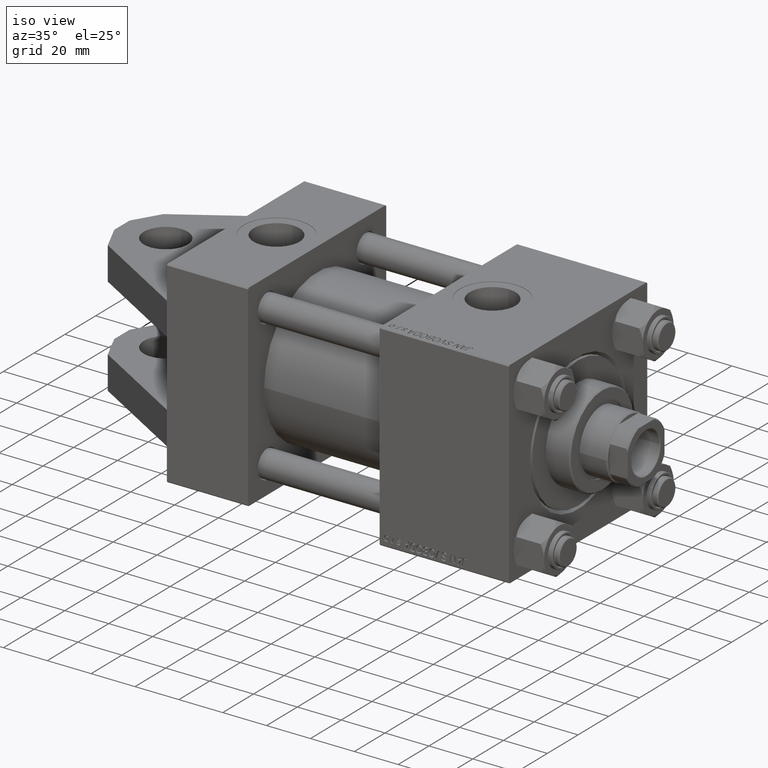
[diagram: clean part render]
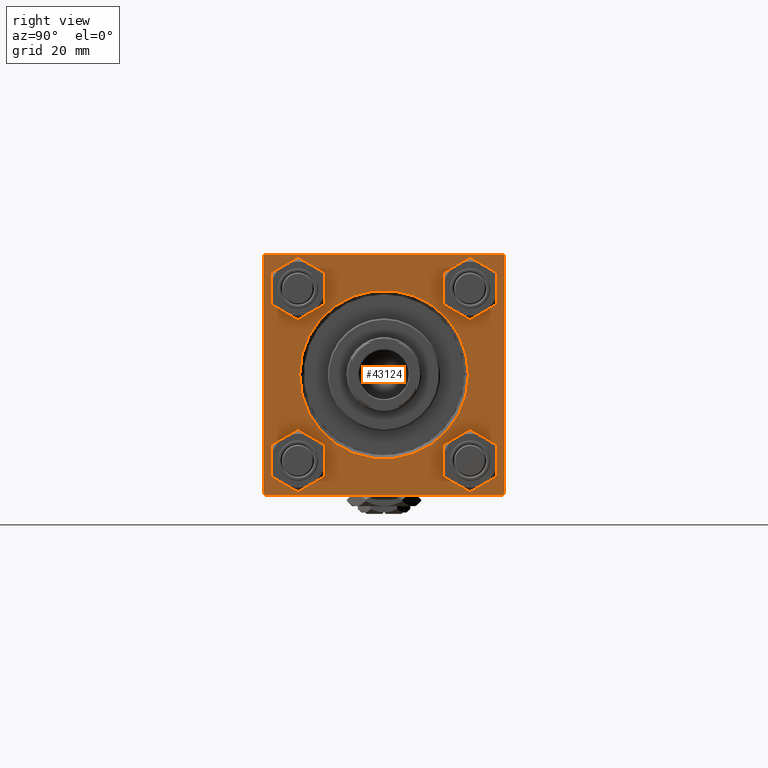
[diagram: tour spotlight — one face highlighted and labeled with its STEP entity id]
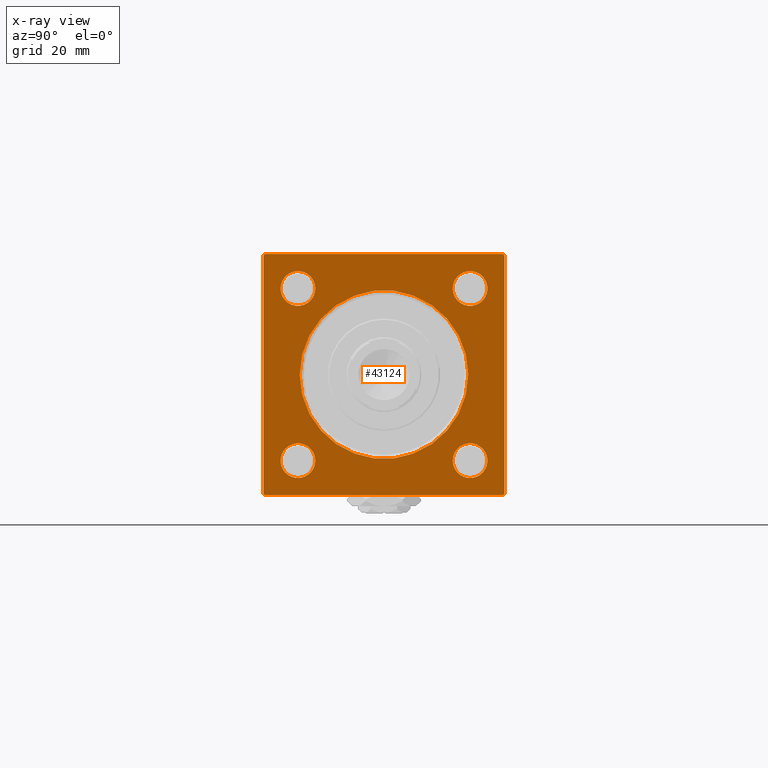
[diagram: x-ray of the same camera — body ghosted, this tour face saturated]
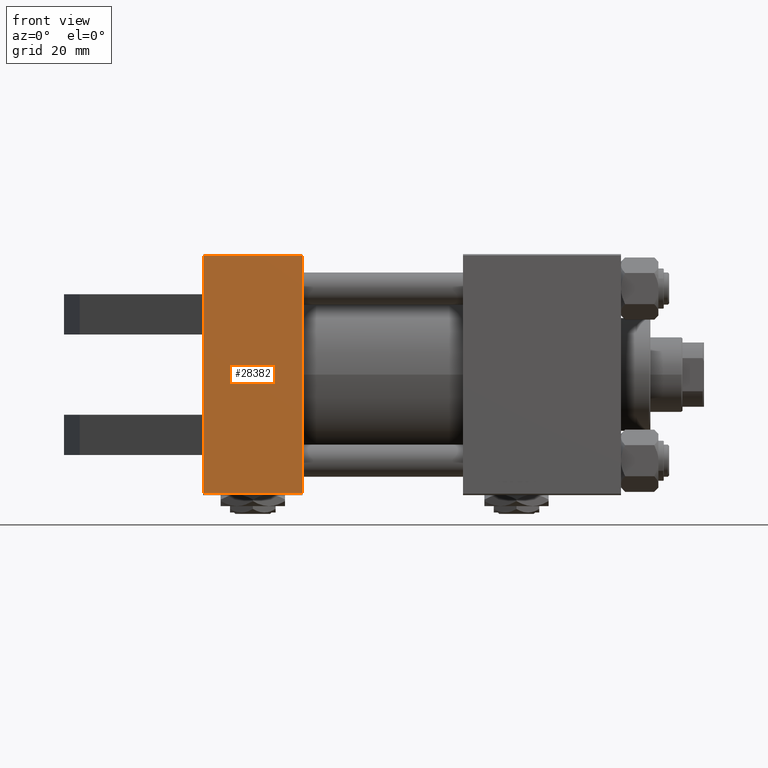
[diagram: tour spotlight — one face highlighted and labeled with its STEP entity id]
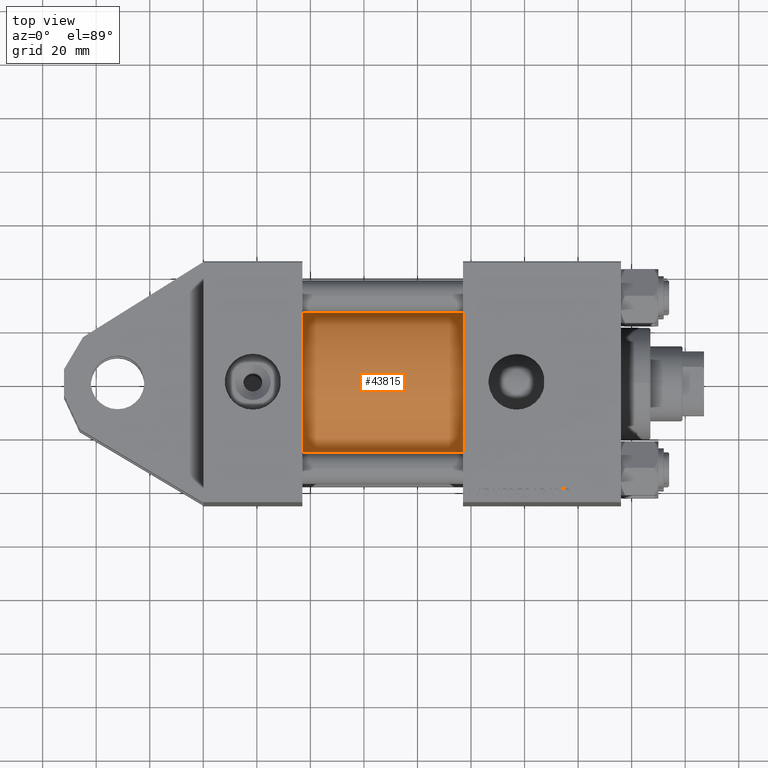
[diagram: tour spotlight — one face highlighted and labeled with its STEP entity id]
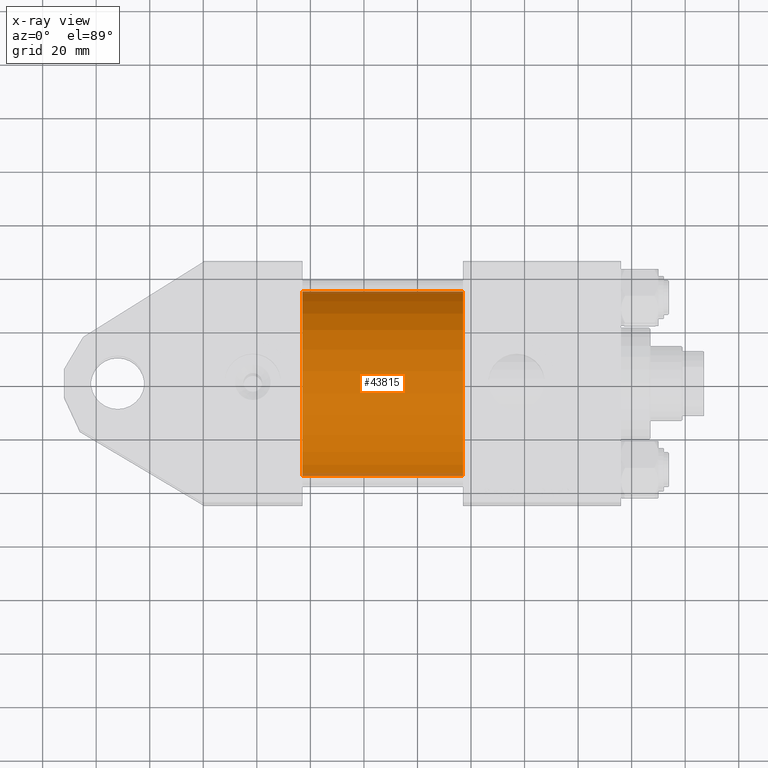
[diagram: x-ray of the same camera — body ghosted, this tour face saturated]
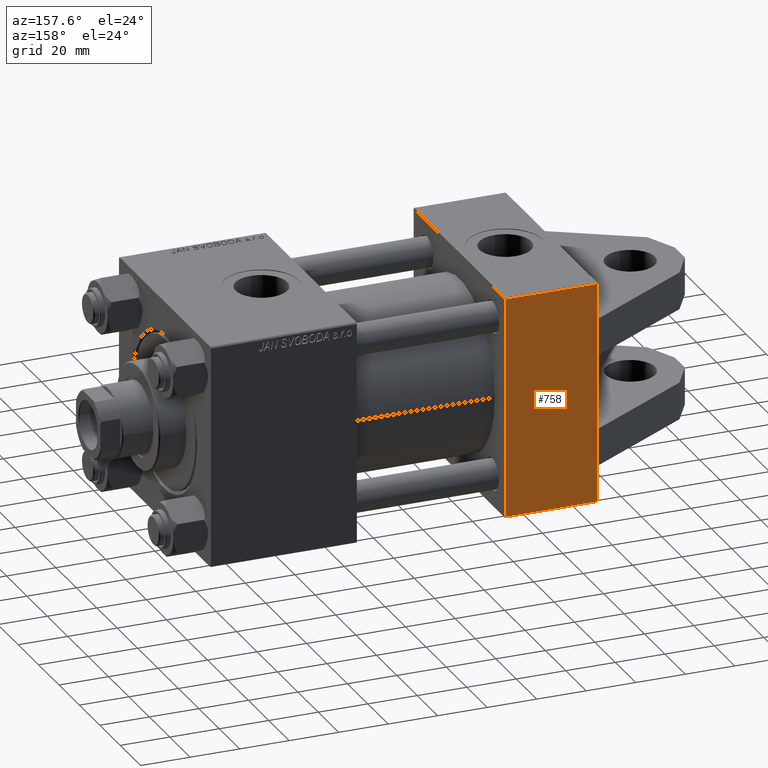
[diagram: tour spotlight — one face highlighted and labeled with its STEP entity id]
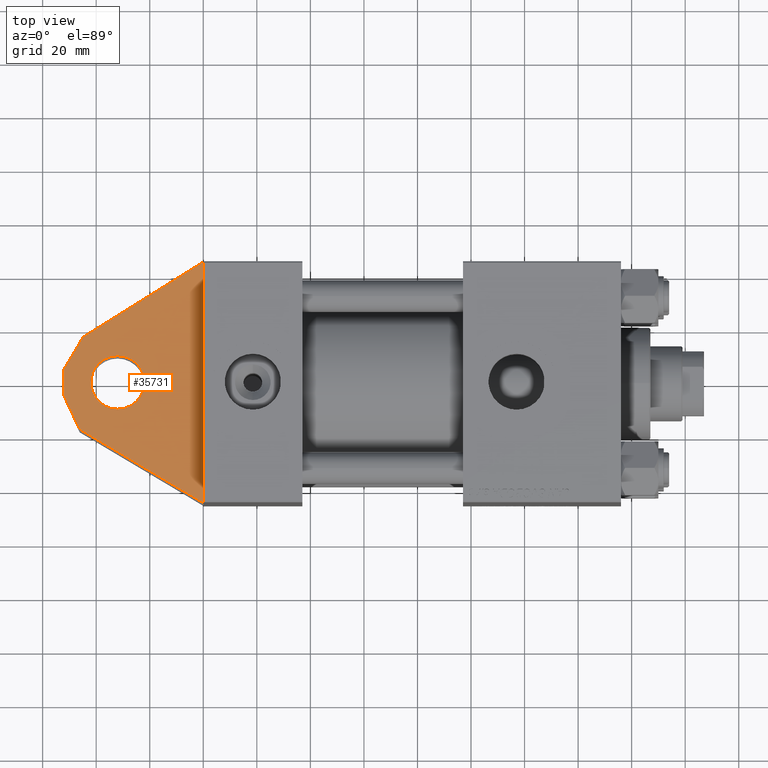
[diagram: tour spotlight — one face highlighted and labeled with its STEP entity id]
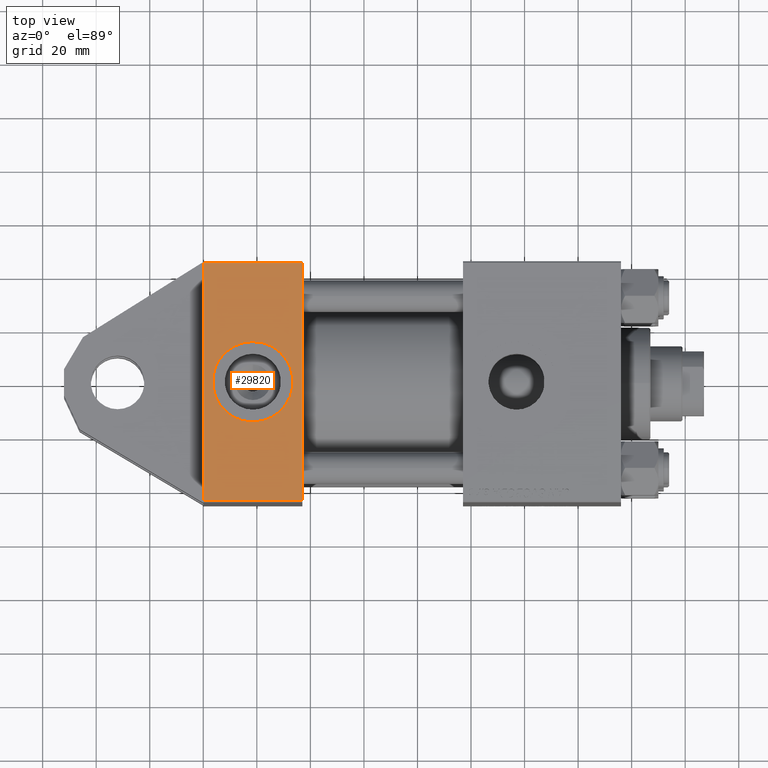
[diagram: tour spotlight — one face highlighted and labeled with its STEP entity id]
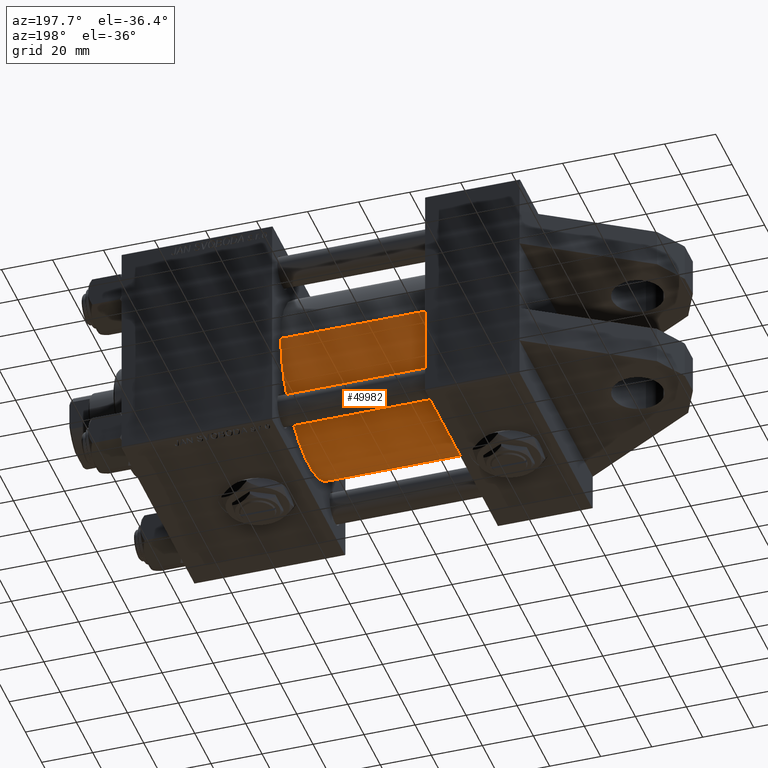
[diagram: tour spotlight — one face highlighted and labeled with its STEP entity id]
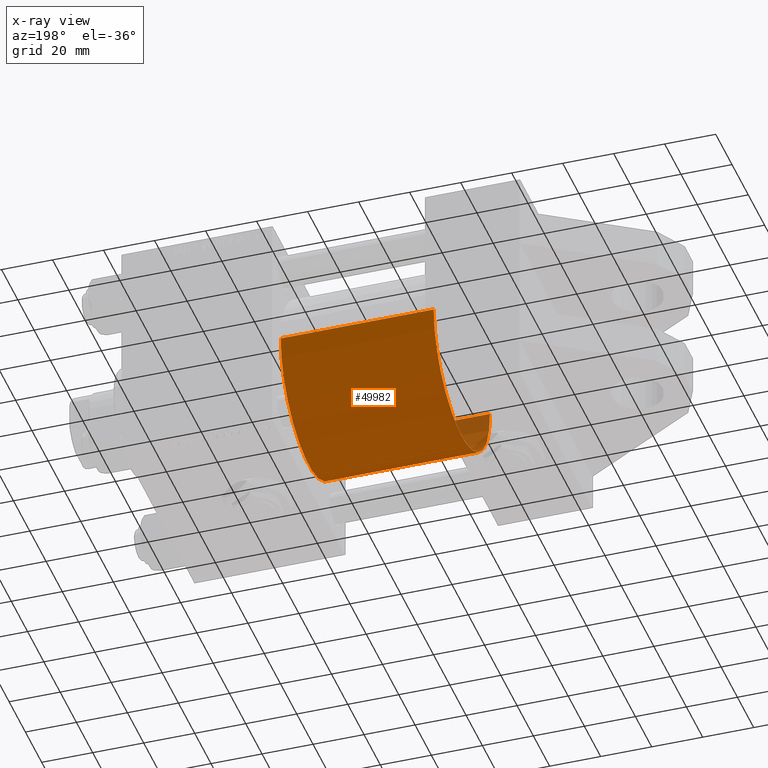
[diagram: x-ray of the same camera — body ghosted, this tour face saturated]
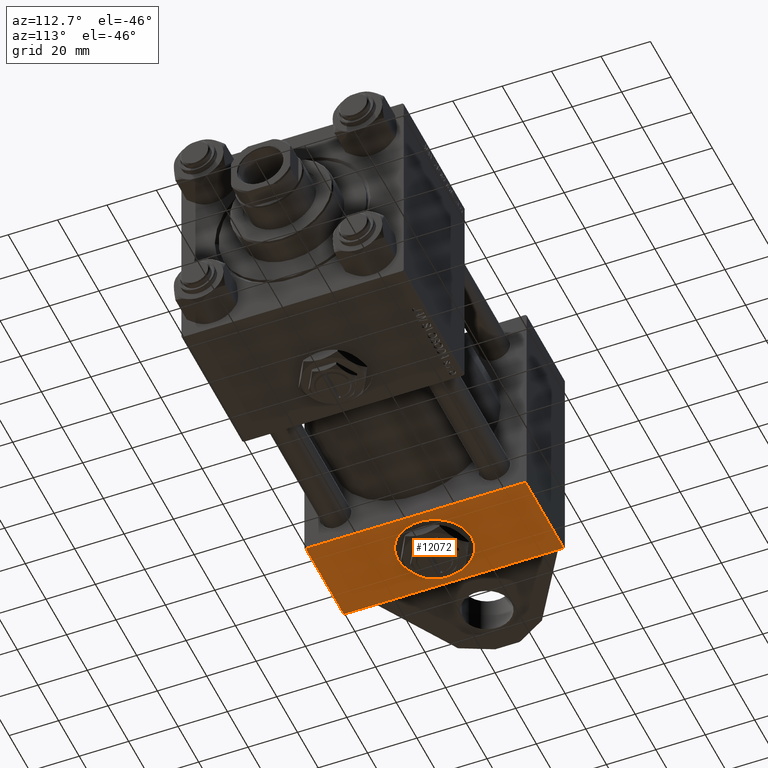
[diagram: tour spotlight — one face highlighted and labeled with its STEP entity id]
A machine part: a face-by-face anatomy tour. The part has 1230 B-rep faces; the first image is the clean iso view, then the 8 largest visible faces are spotlighted one at a time (largest first), each with its STEP entity span.

Face 1 — right view, entity #43124. An x-ray twin of the same camera follows (body ghosted, this face saturated) — the face is partly hidden behind the body. In plain terms, the highlighted planar face has unit normal (-1, 0, -0).
Definition (entity closure, byte-faithful):
#241 = CARTESIAN_POINT ( 'NONE',  ( 156.0000000000000000, 0.000000000000000000, -31.50000000000000000 ) ) ;
#940 = DIRECTION ( 'NONE',  ( 0.000000000000000000, -1.000000000000000000, 0.000000000000000000 ) ) ;
#966 = FACE_BOUND ( 'NONE', #4266, .T. ) ;
#1619 = VECTOR ( 'NONE', #43794, 1000.000000000000000 ) ;
#1981 = DIRECTION ( 'NONE',  ( -1.000000000000000000, -0.000000000000000000, -0.000000000000000000 ) ) ;
#1989 = CARTESIAN_POINT ( 'NONE',  ( 156.0000000000000000, 0.000000000000000000, 0.000000000000000000 ) ) ;
#2036 = CIRCLE ( 'NONE', #31304, 6.500000000000005329 ) ;
#2094 = CARTESIAN_POINT ( 'NONE',  ( 156.0000000000000000, 32.14999999999999147, 32.15000000000000568 ) ) ;
#2232 = CIRCLE ( 'NONE', #4725, 6.499999999999999112 ) ;
#3614 = CARTESIAN_POINT ( 'NONE',  ( 156.0000000000000000, 45.00000000000001421, -44.49999999999997158 ) ) ;
#3743 = CARTESIAN_POINT ( 'NONE',  ( 156.0000000000000000, 45.00000000000001421, 45.00000000000000000 ) ) ;
#4124 = DIRECTION ( 'NONE',  ( -0.000000000000000000, 0.000000000000000000, 1.000000000000000000 ) ) ;
#4212 = EDGE_CURVE ( 'NONE', #44272, #12742, #29058, .T. ) ;
#4266 = EDGE_LOOP ( 'NONE', ( #25003, #37001 ) ) ;
#4646 = DIRECTION ( 'NONE',  ( -1.000000000000000000, -0.000000000000000000, -0.000000000000000000 ) ) ;
#4725 = AXIS2_PLACEMENT_3D ( 'NONE', #8045, #47348, #27705 ) ;
#4899 = AXIS2_PLACEMENT_3D ( 'NONE', #18155, #34900, #50360 ) ;
#5820 = EDGE_CURVE ( 'NONE', #39425, #29067, #6565, .T. ) ;
#5857 = CARTESIAN_POINT ( 'NONE',  ( 156.0000000000000000, -32.14999999999999147, 32.14999999999999147 ) ) ;
#6366 = EDGE_LOOP ( 'NONE', ( #11472, #42408 ) ) ;
#6369 = CARTESIAN_POINT ( 'NONE',  ( 156.0000000000000000, 32.14999999999999147, 32.15000000000000568 ) ) ;
#6474 = VERTEX_POINT ( 'NONE', #241 ) ;
#6473 = EDGE_CURVE ( 'NONE', #44740, #25174, #27494, .T. ) ;
#6565 = CIRCLE ( 'NONE', #11598, 6.500000000000005329 ) ;
#7490 = AXIS2_PLACEMENT_3D ( 'NONE', #37891, #1981, #30785 ) ;
#7762 = EDGE_CURVE ( 'NONE', #49736, #15545, #33413, .T. ) ;
#7863 = VECTOR ( 'NONE', #16715, 1000.000000000000000 ) ;
#8005 = CARTESIAN_POINT ( 'NONE',  ( 156.0000000000000000, 44.50000000000001421, -45.00000000000000000 ) ) ;
#8045 = CARTESIAN_POINT ( 'NONE',  ( 156.0000000000000000, 32.14999999999999147, -32.15000000000000568 ) ) ;
#8331 = LINE ( 'NONE', #40543, #7863 ) ;
#8612 = DIRECTION ( 'NONE',  ( 0.000000000000000000, 0.000000000000000000, 1.000000000000000000 ) ) ;
#9319 = CARTESIAN_POINT ( 'NONE',  ( 156.0000000000000000, 45.00000000000001421, -45.00000000000000000 ) ) ;
#9690 = EDGE_CURVE ( 'NONE', #12742, #44272, #2036, .T. ) ;
#10498 = CARTESIAN_POINT ( 'NONE',  ( 156.0000000000000000, 45.00000000000001421, 45.00000000000000000 ) ) ;
#10531 = EDGE_CURVE ( 'NONE', #36913, #15545, #26267, .T. ) ;
#10708 = AXIS2_PLACEMENT_3D ( 'NONE', #34361, #41976, #14194 ) ;
#10846 = ORIENTED_EDGE ( 'NONE', *, *, #14341, .F. ) ;
#11218 = CARTESIAN_POINT ( 'NONE',  ( 156.0000000000000000, -44.49999999999990052, -45.00000000000000000 ) ) ;
#11472 = ORIENTED_EDGE ( 'NONE', *, *, #13662, .T. ) ;
#11479 = ORIENTED_EDGE ( 'NONE', *, *, #10531, .T. ) ;
#11579 = CARTESIAN_POINT ( 'NONE',  ( 156.0000000000000000, -44.99999999999999289, -44.49999999999991473 ) ) ;
#11587 = EDGE_CURVE ( 'NONE', #20545, #36913, #8331, .T. ) ;
#11598 = AXIS2_PLACEMENT_3D ( 'NONE', #5857, #21831, #38338 ) ;
#11721 = FACE_BOUND ( 'NONE', #22623, .T. ) ;
#11829 = LINE ( 'NONE', #27816, #1619 ) ;
#11859 = LINE ( 'NONE', #3743, #45585 ) ;
#11880 = VECTOR ( 'NONE', #43903, 1000.000000000000114 ) ;
#12272 = CARTESIAN_POINT ( 'NONE',  ( 156.0000000000000000, -32.15000000000001279, -32.15000000000000568 ) ) ;
#12742 = VERTEX_POINT ( 'NONE', #13028 ) ;
#12745 = PLANE ( 'NONE',  #27478 ) ;
#12796 = DIRECTION ( 'NONE',  ( -1.000000000000000000, -0.000000000000000000, -0.000000000000000000 ) ) ;
#13028 = CARTESIAN_POINT ( 'NONE',  ( 156.0000000000000000, 32.14999999999999147, 38.65000000000001990 ) ) ;
#13466 = EDGE_LOOP ( 'NONE', ( #20373, #11479, #36946, #39602, #10846, #33901, #37519, #47758 ) ) ;
#13662 = EDGE_CURVE ( 'NONE', #6474, #31577, #28006, .T. ) ;
#14194 = DIRECTION ( 'NONE',  ( 0.000000000000000000, 0.000000000000000000, 1.000000000000000000 ) ) ;
#14341 = EDGE_CURVE ( 'NONE', #38869, #42934, #41966, .T. ) ;
#14921 = EDGE_CURVE ( 'NONE', #30464, #51412, #11859, .T. ) ;
#14955 = CIRCLE ( 'NONE', #4899, 31.50000000000000000 ) ;
#15242 = CARTESIAN_POINT ( 'NONE',  ( 156.0000000000000000, 45.00000000000001421, 44.50000000000000000 ) ) ;
#15545 = VERTEX_POINT ( 'NONE', #11218 ) ;
#15790 = AXIS2_PLACEMENT_3D ( 'NONE', #12272, #12796, #8612 ) ;
#15963 = CIRCLE ( 'NONE', #33544, 6.500000000000005329 ) ;
#16213 = CARTESIAN_POINT ( 'NONE',  ( 156.0000000000000000, -32.14999999999999147, 38.65000000000000568 ) ) ;
#16715 = DIRECTION ( 'NONE',  ( 0.000000000000000000, 7.709882115452478166E-17, -1.000000000000000000 ) ) ;
#17494 = VECTOR ( 'NONE', #36872, 1000.000000000000114 ) ;
#18086 = DIRECTION ( 'NONE',  ( -1.000000000000000000, -0.000000000000000000, -0.000000000000000000 ) ) ;
#18155 = CARTESIAN_POINT ( 'NONE',  ( 156.0000000000000000, 0.000000000000000000, 0.000000000000000000 ) ) ;
#18761 = CARTESIAN_POINT ( 'NONE',  ( 156.0000000000000000, 32.14999999999999147, 25.64999999999999858 ) ) ;
#19088 = CIRCLE ( 'NONE', #10708, 6.500000000000005329 ) ;
#19177 = ORIENTED_EDGE ( 'NONE', *, *, #28403, .T. ) ;
#19647 = AXIS2_PLACEMENT_3D ( 'NONE', #1989, #33945, #37104 ) ;
#19925 = CARTESIAN_POINT ( 'NONE',  ( 156.0000000000000000, 44.49999999999998579, 45.00000000000000000 ) ) ;
#20373 = ORIENTED_EDGE ( 'NONE', *, *, #11587, .T. ) ;
#20421 = VECTOR ( 'NONE', #940, 1000.000000000000000 ) ;
#20545 = VERTEX_POINT ( 'NONE', #28019 ) ;
#20896 = CARTESIAN_POINT ( 'NONE',  ( 156.0000000000000000, -32.15000000000001279, -32.15000000000000568 ) ) ;
#21588 = VERTEX_POINT ( 'NONE', #29393 ) ;
#21702 = EDGE_CURVE ( 'NONE', #29067, #39425, #19088, .T. ) ;
#21831 = DIRECTION ( 'NONE',  ( -1.000000000000000000, -0.000000000000000000, -0.000000000000000000 ) ) ;
#22623 = EDGE_LOOP ( 'NONE', ( #31823, #19177 ) ) ;
#24024 = FACE_BOUND ( 'NONE', #32845, .T. ) ;
#24555 = CARTESIAN_POINT ( 'NONE',  ( 156.0000000000000000, 3.857637417314162689E-15, 31.50000000000000000 ) ) ;
#25003 = ORIENTED_EDGE ( 'NONE', *, *, #5820, .T. ) ;
#25174 = VERTEX_POINT ( 'NONE', #27733 ) ;
#26267 = LINE ( 'NONE', #34129, #37106 ) ;
#26754 = EDGE_CURVE ( 'NONE', #31577, #6474, #14955, .T. ) ;
#26788 = DIRECTION ( 'NONE',  ( -1.000000000000000000, -0.000000000000000000, -0.000000000000000000 ) ) ;
#27478 = AXIS2_PLACEMENT_3D ( 'NONE', #27706, #40021, #4124 ) ;
#27494 = CIRCLE ( 'NONE', #15790, 6.500000000000005329 ) ;
#27705 = DIRECTION ( 'NONE',  ( 0.000000000000000000, 0.000000000000000000, 1.000000000000000000 ) ) ;
#27706 = CARTESIAN_POINT ( 'NONE',  ( 156.0000000000000000, 0.000000000000000000, 0.000000000000000000 ) ) ;
#27733 = CARTESIAN_POINT ( 'NONE',  ( 156.0000000000000000, -32.15000000000001279, -38.65000000000001279 ) ) ;
#27816 = CARTESIAN_POINT ( 'NONE',  ( 156.0000000000000000, 44.49999999999998579, 45.00000000000000000 ) ) ;
#27924 = EDGE_CURVE ( 'NONE', #38869, #30464, #11829, .T. ) ;
#28006 = CIRCLE ( 'NONE', #19647, 31.50000000000000000 ) ;
#28019 = CARTESIAN_POINT ( 'NONE',  ( 156.0000000000000000, -45.00000000000000000, 44.49999999999995737 ) ) ;
#28074 = EDGE_LOOP ( 'NONE', ( #37192, #35680 ) ) ;
#28233 = DIRECTION ( 'NONE',  ( 0.000000000000000000, 0.000000000000000000, 1.000000000000000000 ) ) ;
#28403 = EDGE_CURVE ( 'NONE', #40194, #21588, #48485, .T. ) ;
#28473 = FACE_BOUND ( 'NONE', #6366, .T. ) ;
#28795 = CARTESIAN_POINT ( 'NONE',  ( 156.0000000000000000, -32.15000000000001279, -25.64999999999999858 ) ) ;
#28869 = VECTOR ( 'NONE', #50319, 1000.000000000000000 ) ;
#29058 = CIRCLE ( 'NONE', #50826, 6.500000000000005329 ) ;
#29067 = VERTEX_POINT ( 'NONE', #16213 ) ;
#29393 = CARTESIAN_POINT ( 'NONE',  ( 156.0000000000000000, 32.14999999999999147, -38.65000000000000568 ) ) ;
#30464 = VERTEX_POINT ( 'NONE', #19925 ) ;
#30785 = DIRECTION ( 'NONE',  ( 0.000000000000000000, 0.000000000000000000, 1.000000000000000000 ) ) ;
#31304 = AXIS2_PLACEMENT_3D ( 'NONE', #2094, #18086, #34053 ) ;
#31577 = VERTEX_POINT ( 'NONE', #24555 ) ;
#31624 = EDGE_CURVE ( 'NONE', #25174, #44740, #15963, .T. ) ;
#31823 = ORIENTED_EDGE ( 'NONE', *, *, #38412, .T. ) ;
#31834 = CARTESIAN_POINT ( 'NONE',  ( 156.0000000000000000, -32.14999999999999147, 25.64999999999998437 ) ) ;
#32406 = CARTESIAN_POINT ( 'NONE',  ( 156.0000000000000000, -45.00000000000000000, 44.49999999999995737 ) ) ;
#32740 = ORIENTED_EDGE ( 'NONE', *, *, #4212, .T. ) ;
#32845 = EDGE_LOOP ( 'NONE', ( #32740, #42850 ) ) ;
#33413 = LINE ( 'NONE', #9319, #20421 ) ;
#33430 = EDGE_CURVE ( 'NONE', #49736, #42934, #34319, .T. ) ;
#33544 = AXIS2_PLACEMENT_3D ( 'NONE', #20896, #4646, #28233 ) ;
#33901 = ORIENTED_EDGE ( 'NONE', *, *, #27924, .T. ) ;
#33945 = DIRECTION ( 'NONE',  ( -1.000000000000000000, -0.000000000000000000, -0.000000000000000000 ) ) ;
#34053 = DIRECTION ( 'NONE',  ( 0.000000000000000000, 0.000000000000000000, 1.000000000000000000 ) ) ;
#34129 = CARTESIAN_POINT ( 'NONE',  ( 156.0000000000000000, -44.49999999999992895, -45.00000000000000000 ) ) ;
#34319 = LINE ( 'NONE', #35521, #11880 ) ;
#34361 = CARTESIAN_POINT ( 'NONE',  ( 156.0000000000000000, -32.14999999999999147, 32.14999999999999147 ) ) ;
#34900 = DIRECTION ( 'NONE',  ( -1.000000000000000000, -0.000000000000000000, -0.000000000000000000 ) ) ;
#35172 = DIRECTION ( 'NONE',  ( 0.000000000000000000, 0.000000000000000000, 1.000000000000000000 ) ) ;
#35521 = CARTESIAN_POINT ( 'NONE',  ( 156.0000000000000000, 45.00000000000001421, -44.50000000000000000 ) ) ;
#35680 = ORIENTED_EDGE ( 'NONE', *, *, #6473, .T. ) ;
#36579 = FACE_OUTER_BOUND ( 'NONE', #13466, .T. ) ;
#36872 = DIRECTION ( 'NONE',  ( -0.000000000000000000, -0.7071067811865474617, -0.7071067811865474617 ) ) ;
#36913 = VERTEX_POINT ( 'NONE', #11579 ) ;
#36946 = ORIENTED_EDGE ( 'NONE', *, *, #7762, .F. ) ;
#37001 = ORIENTED_EDGE ( 'NONE', *, *, #21702, .T. ) ;
#37104 = DIRECTION ( 'NONE',  ( 0.000000000000000000, 0.000000000000000000, 1.000000000000000000 ) ) ;
#37106 = VECTOR ( 'NONE', #50615, 1000.000000000000000 ) ;
#37192 = ORIENTED_EDGE ( 'NONE', *, *, #31624, .T. ) ;
#37519 = ORIENTED_EDGE ( 'NONE', *, *, #14921, .T. ) ;
#37891 = CARTESIAN_POINT ( 'NONE',  ( 156.0000000000000000, 32.14999999999999147, -32.15000000000000568 ) ) ;
#38338 = DIRECTION ( 'NONE',  ( 0.000000000000000000, 0.000000000000000000, 1.000000000000000000 ) ) ;
#38412 = EDGE_CURVE ( 'NONE', #21588, #40194, #2232, .T. ) ;
#38869 = VERTEX_POINT ( 'NONE', #15242 ) ;
#39425 = VERTEX_POINT ( 'NONE', #31834 ) ;
#39602 = ORIENTED_EDGE ( 'NONE', *, *, #33430, .T. ) ;
#40021 = DIRECTION ( 'NONE',  ( -1.000000000000000000, 0.000000000000000000, -0.000000000000000000 ) ) ;
#40194 = VERTEX_POINT ( 'NONE', #42368 ) ;
#40540 = LINE ( 'NONE', #32406, #17494 ) ;
#40543 = CARTESIAN_POINT ( 'NONE',  ( 156.0000000000000000, -45.00000000000000000, 44.99999999999998579 ) ) ;
#41966 = LINE ( 'NONE', #10498, #28869 ) ;
#41976 = DIRECTION ( 'NONE',  ( -1.000000000000000000, -0.000000000000000000, -0.000000000000000000 ) ) ;
#42368 = CARTESIAN_POINT ( 'NONE',  ( 156.0000000000000000, 32.14999999999999147, -25.65000000000000568 ) ) ;
#42408 = ORIENTED_EDGE ( 'NONE', *, *, #26754, .T. ) ;
#42850 = ORIENTED_EDGE ( 'NONE', *, *, #9690, .T. ) ;
#42934 = VERTEX_POINT ( 'NONE', #3614 ) ;
#43124 = ADVANCED_FACE ( 'NONE', ( #43933, #11721, #24024, #966, #28473, #36579 ), #12745, .F. ) ;
#43794 = DIRECTION ( 'NONE',  ( 0.000000000000000000, -0.7071067811865672237, 0.7071067811865279218 ) ) ;
#43903 = DIRECTION ( 'NONE',  ( -0.000000000000000000, 0.7071067811865474617, 0.7071067811865474617 ) ) ;
#43933 = FACE_BOUND ( 'NONE', #28074, .T. ) ;
#44272 = VERTEX_POINT ( 'NONE', #18761 ) ;
#44332 = DIRECTION ( 'NONE',  ( 0.000000000000000000, -1.000000000000000000, -1.541976423090495140E-16 ) ) ;
#44740 = VERTEX_POINT ( 'NONE', #28795 ) ;
#45585 = VECTOR ( 'NONE', #44332, 1000.000000000000000 ) ;
#47348 = DIRECTION ( 'NONE',  ( -1.000000000000000000, -0.000000000000000000, -0.000000000000000000 ) ) ;
#47758 = ORIENTED_EDGE ( 'NONE', *, *, #49403, .T. ) ;
#48485 = CIRCLE ( 'NONE', #7490, 6.499999999999999112 ) ;
#49403 = EDGE_CURVE ( 'NONE', #51412, #20545, #40540, .T. ) ;
#49736 = VERTEX_POINT ( 'NONE', #8005 ) ;
#49769 = CARTESIAN_POINT ( 'NONE',  ( 156.0000000000000000, -44.49999999999994316, 44.99999999999998579 ) ) ;
#50319 = DIRECTION ( 'NONE',  ( 0.000000000000000000, 0.000000000000000000, -1.000000000000000000 ) ) ;
#50360 = DIRECTION ( 'NONE',  ( 0.000000000000000000, 0.000000000000000000, 1.000000000000000000 ) ) ;
#50615 = DIRECTION ( 'NONE',  ( 0.000000000000000000, 0.7071067811865524577, -0.7071067811865426878 ) ) ;
#50826 = AXIS2_PLACEMENT_3D ( 'NONE', #6369, #26788, #35172 ) ;
#51412 = VERTEX_POINT ( 'NONE', #49769 ) ;

Face 2 — front view, entity #28382. In plain terms, the highlighted planar face has unit normal (0, -1, -0).
Definition (entity closure, byte-faithful):
#253 = EDGE_CURVE ( 'NONE', #34438, #5603, #16555, .T. ) ;
#829 = CARTESIAN_POINT ( 'NONE',  ( 37.00000000000000000, 44.49999999999998579, -44.99999999999998579 ) ) ;
#1357 = EDGE_CURVE ( 'NONE', #48457, #38238, #1568, .T. ) ;
#1416 = ORIENTED_EDGE ( 'NONE', *, *, #43170, .T. ) ;
#1568 = LINE ( 'NONE', #37465, #19794 ) ;
#1731 = CARTESIAN_POINT ( 'NONE',  ( 37.00000000000000000, 44.99999999999998579, -44.99999999999998579 ) ) ;
#4272 = EDGE_CURVE ( 'NONE', #34438, #48457, #4739, .T. ) ;
#4325 = ORIENTED_EDGE ( 'NONE', *, *, #47376, .T. ) ;
#4739 = LINE ( 'NONE', #47978, #18232 ) ;
#4997 = ORIENTED_EDGE ( 'NONE', *, *, #45126, .F. ) ;
#5155 = CARTESIAN_POINT ( 'NONE',  ( 0.000000000000000000, -30.00000000000000000, -45.00000000000000000 ) ) ;
#5539 = VECTOR ( 'NONE', #49293, 1000.000000000000000 ) ;
#5603 = VERTEX_POINT ( 'NONE', #44113 ) ;
#6121 = VERTEX_POINT ( 'NONE', #40907 ) ;
#6510 = VECTOR ( 'NONE', #49049, 1000.000000000000000 ) ;
#9080 = DIRECTION ( 'NONE',  ( -0.000000000000000000, 1.000000000000000000, -0.000000000000000000 ) ) ;
#9587 = EDGE_LOOP ( 'NONE', ( #14894, #11665, #4325, #24486, #30488, #1416, #4997, #37349 ) ) ;
#11601 = EDGE_CURVE ( 'NONE', #17992, #6121, #48657, .T. ) ;
#11665 = ORIENTED_EDGE ( 'NONE', *, *, #253, .T. ) ;
#12241 = CARTESIAN_POINT ( 'NONE',  ( 0.000000000000000000, 44.99999999999998579, -44.99999999999998579 ) ) ;
#12904 = CARTESIAN_POINT ( 'NONE',  ( 0.000000000000000000, -44.49999999999998579, -45.00000000000000000 ) ) ;
#14467 = LINE ( 'NONE', #33338, #28321 ) ;
#14894 = ORIENTED_EDGE ( 'NONE', *, *, #4272, .F. ) ;
#15938 = DIRECTION ( 'NONE',  ( 0.000000000000000000, -1.000000000000000000, -1.541976423090495633E-16 ) ) ;
#16555 = LINE ( 'NONE', #829, #5539 ) ;
#16798 = DIRECTION ( 'NONE',  ( 0.000000000000000000, -1.000000000000000000, -1.541976423090495633E-16 ) ) ;
#16929 = DIRECTION ( 'NONE',  ( 0.000000000000000000, 1.541976423090495880E-16, -1.000000000000000000 ) ) ;
#17413 = DIRECTION ( 'NONE',  ( 0.000000000000000000, -1.000000000000000000, -1.541976423090495633E-16 ) ) ;
#17510 = CARTESIAN_POINT ( 'NONE',  ( 0.000000000000000000, 44.49999999999998579, -44.99999999999998579 ) ) ;
#17992 = VERTEX_POINT ( 'NONE', #23656 ) ;
#18232 = VECTOR ( 'NONE', #16798, 1000.000000000000000 ) ;
#19794 = VECTOR ( 'NONE', #21740, 1000.000000000000000 ) ;
#21606 = VECTOR ( 'NONE', #9080, 1000.000000000000000 ) ;
#21740 = DIRECTION ( 'NONE',  ( -0.000000000000000000, -1.000000000000000000, -0.000000000000000000 ) ) ;
#23656 = CARTESIAN_POINT ( 'NONE',  ( 0.000000000000000000, -30.00000000000000000, -45.00000000000000000 ) ) ;
#24125 = CARTESIAN_POINT ( 'NONE',  ( 37.00000000000000000, -44.49999999999995737, -45.00000000000000000 ) ) ;
#24486 = ORIENTED_EDGE ( 'NONE', *, *, #41174, .T. ) ;
#25050 = DIRECTION ( 'NONE',  ( 0.000000000000000000, 1.000000000000000000, 1.541976423090495880E-16 ) ) ;
#25271 = CARTESIAN_POINT ( 'NONE',  ( 0.000000000000000000, 44.99999999999998579, -44.99999999999998579 ) ) ;
#25744 = DIRECTION ( 'NONE',  ( 0.000000000000000000, -1.000000000000000000, -1.541976423090495633E-16 ) ) ;
#28321 = VECTOR ( 'NONE', #25744, 1000.000000000000000 ) ;
#28382 = ADVANCED_FACE ( 'NONE', ( #37632 ), #44683, .T. ) ;
#29151 = LINE ( 'NONE', #12904, #6510 ) ;
#29254 = LINE ( 'NONE', #5155, #21606 ) ;
#29594 = VECTOR ( 'NONE', #15938, 1000.000000000000000 ) ;
#30488 = ORIENTED_EDGE ( 'NONE', *, *, #11601, .F. ) ;
#32061 = VERTEX_POINT ( 'NONE', #34440 ) ;
#33338 = CARTESIAN_POINT ( 'NONE',  ( 37.00000000000000000, 44.99999999999998579, -44.99999999999998579 ) ) ;
#34438 = VERTEX_POINT ( 'NONE', #17510 ) ;
#34440 = CARTESIAN_POINT ( 'NONE',  ( 0.000000000000000000, -15.00000000000000000, -45.00000000000000000 ) ) ;
#35315 = CARTESIAN_POINT ( 'NONE',  ( 0.000000000000000000, 15.00000000000000711, -44.99999999999999289 ) ) ;
#37349 = ORIENTED_EDGE ( 'NONE', *, *, #1357, .F. ) ;
#37465 = CARTESIAN_POINT ( 'NONE',  ( 0.000000000000000000, 30.00000000000000000, -45.00000000000000000 ) ) ;
#37632 = FACE_OUTER_BOUND ( 'NONE', #9587, .T. ) ;
#38238 = VERTEX_POINT ( 'NONE', #35315 ) ;
#40907 = CARTESIAN_POINT ( 'NONE',  ( 0.000000000000000000, -44.49999999999995737, -45.00000000000000000 ) ) ;
#41174 = EDGE_CURVE ( 'NONE', #51209, #6121, #29151, .T. ) ;
#41776 = VECTOR ( 'NONE', #17413, 1000.000000000000000 ) ;
#42651 = AXIS2_PLACEMENT_3D ( 'NONE', #1731, #16929, #25050 ) ;
#43170 = EDGE_CURVE ( 'NONE', #17992, #32061, #29254, .T. ) ;
#44113 = CARTESIAN_POINT ( 'NONE',  ( 37.00000000000000000, 44.49999999999998579, -44.99999999999998579 ) ) ;
#44401 = LINE ( 'NONE', #25271, #41776 ) ;
#44683 = PLANE ( 'NONE',  #42651 ) ;
#45126 = EDGE_CURVE ( 'NONE', #38238, #32061, #44401, .T. ) ;
#47376 = EDGE_CURVE ( 'NONE', #5603, #51209, #14467, .T. ) ;
#47978 = CARTESIAN_POINT ( 'NONE',  ( 0.000000000000000000, 44.99999999999998579, -44.99999999999998579 ) ) ;
#48457 = VERTEX_POINT ( 'NONE', #49779 ) ;
#48657 = LINE ( 'NONE', #12241, #29594 ) ;
#49049 = DIRECTION ( 'NONE',  ( -1.000000000000000000, 0.000000000000000000, 0.000000000000000000 ) ) ;
#49293 = DIRECTION ( 'NONE',  ( 1.000000000000000000, 0.000000000000000000, 0.000000000000000000 ) ) ;
#49779 = CARTESIAN_POINT ( 'NONE',  ( 0.000000000000000000, 30.00000000000000000, -45.00000000000000000 ) ) ;
#51209 = VERTEX_POINT ( 'NONE', #24125 ) ;

Face 3 — top view, entity #43815. An x-ray twin of the same camera follows (body ghosted, this face saturated) — the face is partly hidden behind the body. In plain terms, the highlighted cylindrical surface (partial cylindrical patch) has radius 34.5 mm, axis along (-1, -0, 0).
Definition (entity closure, byte-faithful):
#315 = CARTESIAN_POINT ( 'NONE',  ( 97.00000000000000000, 7.555845051047534515E-16, -34.49999999999999289 ) ) ;
#1739 = DIRECTION ( 'NONE',  ( -1.000000000000000000, -0.000000000000000000, -0.000000000000000000 ) ) ;
#2399 = AXIS2_PLACEMENT_3D ( 'NONE', #46174, #19194, #26266 ) ;
#2650 = FACE_OUTER_BOUND ( 'NONE', #5721, .T. ) ;
#4079 = AXIS2_PLACEMENT_3D ( 'NONE', #27681, #18795, #7003 ) ;
#5721 = EDGE_LOOP ( 'NONE', ( #20600, #31860, #26422, #35483 ) ) ;
#6227 = CARTESIAN_POINT ( 'NONE',  ( 97.00000000000000000, -3.469446951953614189E-15, 34.49999999999999289 ) ) ;
#6597 = CIRCLE ( 'NONE', #4079, 34.49999999999999289 ) ;
#7003 = DIRECTION ( 'NONE',  ( 0.000000000000000000, 0.000000000000000000, 1.000000000000000000 ) ) ;
#7210 = EDGE_CURVE ( 'NONE', #43634, #16547, #36198, .T. ) ;
#8039 = VECTOR ( 'NONE', #1739, 1000.000000000000000 ) ;
#9160 = VERTEX_POINT ( 'NONE', #6227 ) ;
#12879 = CARTESIAN_POINT ( 'NONE',  ( 97.00000000000000000, 7.555845051047534515E-16, -34.49999999999999289 ) ) ;
#14433 = DIRECTION ( 'NONE',  ( 0.000000000000000000, 0.000000000000000000, 1.000000000000000000 ) ) ;
#16547 = VERTEX_POINT ( 'NONE', #33692 ) ;
#16584 = EDGE_CURVE ( 'NONE', #9160, #39705, #25833, .T. ) ;
#17857 = CARTESIAN_POINT ( 'NONE',  ( 97.00000000000000000, -3.469446951953614189E-15, 0.000000000000000000 ) ) ;
#18348 = VECTOR ( 'NONE', #27582, 1000.000000000000000 ) ;
#18795 = DIRECTION ( 'NONE',  ( 1.000000000000000000, -0.000000000000000000, 0.000000000000000000 ) ) ;
#19194 = DIRECTION ( 'NONE',  ( 1.000000000000000000, 0.000000000000000000, 0.000000000000000000 ) ) ;
#20600 = ORIENTED_EDGE ( 'NONE', *, *, #7210, .F. ) ;
#22412 = CARTESIAN_POINT ( 'NONE',  ( 97.00000000000000000, -3.469446951953614189E-15, 34.49999999999999289 ) ) ;
#25833 = LINE ( 'NONE', #22412, #8039 ) ;
#26266 = DIRECTION ( 'NONE',  ( 0.000000000000000000, 0.000000000000000000, -1.000000000000000000 ) ) ;
#26374 = EDGE_CURVE ( 'NONE', #39705, #16547, #6597, .T. ) ;
#26422 = ORIENTED_EDGE ( 'NONE', *, *, #16584, .T. ) ;
#26740 = DIRECTION ( 'NONE',  ( -1.000000000000000000, -0.000000000000000000, -0.000000000000000000 ) ) ;
#26821 = EDGE_CURVE ( 'NONE', #9160, #43634, #34187, .T. ) ;
#27582 = DIRECTION ( 'NONE',  ( -1.000000000000000000, -0.000000000000000000, -0.000000000000000000 ) ) ;
#27681 = CARTESIAN_POINT ( 'NONE',  ( 37.00000000000000000, -3.469446951953614189E-15, 0.000000000000000000 ) ) ;
#31860 = ORIENTED_EDGE ( 'NONE', *, *, #26821, .F. ) ;
#33692 = CARTESIAN_POINT ( 'NONE',  ( 37.00000000000000000, 7.555845051047534515E-16, -34.49999999999999289 ) ) ;
#34187 = CIRCLE ( 'NONE', #2399, 34.49999999999999289 ) ;
#34621 = CARTESIAN_POINT ( 'NONE',  ( 37.00000000000000000, -3.469446951953614189E-15, 34.49999999999999289 ) ) ;
#35483 = ORIENTED_EDGE ( 'NONE', *, *, #26374, .T. ) ;
#36198 = LINE ( 'NONE', #315, #18348 ) ;
#39705 = VERTEX_POINT ( 'NONE', #34621 ) ;
#42468 = CYLINDRICAL_SURFACE ( 'NONE', #51786, 34.49999999999999289 ) ;
#43634 = VERTEX_POINT ( 'NONE', #12879 ) ;
#43815 = ADVANCED_FACE ( 'NONE', ( #2650 ), #42468, .T. ) ;
#46174 = CARTESIAN_POINT ( 'NONE',  ( 97.00000000000000000, -3.469446951953614189E-15, 0.000000000000000000 ) ) ;
#51786 = AXIS2_PLACEMENT_3D ( 'NONE', #17857, #26740, #14433 ) ;

Face 4 — auxiliary view, entity #758. In plain terms, the highlighted planar face has unit normal (0, -1, -0).
Definition (entity closure, byte-faithful):
#758 = ADVANCED_FACE ( 'NONE', ( #42936 ), #23008, .F. ) ;
#836 = VECTOR ( 'NONE', #7649, 1000.000000000000000 ) ;
#1776 = DIRECTION ( 'NONE',  ( 0.000000000000000000, -1.000000000000000000, -1.541976423090495387E-16 ) ) ;
#3104 = DIRECTION ( 'NONE',  ( 0.000000000000000000, 1.541976423090495633E-16, -1.000000000000000000 ) ) ;
#3630 = EDGE_CURVE ( 'NONE', #18674, #51833, #44238, .T. ) ;
#3970 = VECTOR ( 'NONE', #8351, 1000.000000000000000 ) ;
#5080 = LINE ( 'NONE', #5866, #44310 ) ;
#5322 = CARTESIAN_POINT ( 'NONE',  ( 0.000000000000000000, -30.00000000000000000, 45.00000000000000000 ) ) ;
#5650 = EDGE_LOOP ( 'NONE', ( #46284, #33346, #36242, #18685, #27350, #31274, #43587, #41703 ) ) ;
#5866 = CARTESIAN_POINT ( 'NONE',  ( 37.00000000000000000, 44.99999999999998579, 45.00000000000001421 ) ) ;
#6583 = VECTOR ( 'NONE', #8023, 1000.000000000000000 ) ;
#6837 = CARTESIAN_POINT ( 'NONE',  ( 37.00000000000000000, -44.49999999999995737, 45.00000000000000000 ) ) ;
#7425 = CARTESIAN_POINT ( 'NONE',  ( 0.000000000000000000, 30.00000000000000355, 45.00000000000001421 ) ) ;
#7649 = DIRECTION ( 'NONE',  ( 1.000000000000000000, 0.000000000000000000, 0.000000000000000000 ) ) ;
#8023 = DIRECTION ( 'NONE',  ( -0.000000000000000000, -1.000000000000000000, -0.000000000000000000 ) ) ;
#8351 = DIRECTION ( 'NONE',  ( 0.000000000000000000, -1.000000000000000000, -1.541976423090495387E-16 ) ) ;
#10471 = EDGE_CURVE ( 'NONE', #18674, #24814, #21295, .T. ) ;
#11281 = VERTEX_POINT ( 'NONE', #51374 ) ;
#11547 = VERTEX_POINT ( 'NONE', #32150 ) ;
#14945 = CARTESIAN_POINT ( 'NONE',  ( 0.000000000000000000, -44.49999999999995737, 45.00000000000000000 ) ) ;
#15626 = LINE ( 'NONE', #27164, #6583 ) ;
#16899 = VERTEX_POINT ( 'NONE', #6837 ) ;
#18066 = VERTEX_POINT ( 'NONE', #7425 ) ;
#18674 = VERTEX_POINT ( 'NONE', #26882 ) ;
#18685 = ORIENTED_EDGE ( 'NONE', *, *, #10471, .F. ) ;
#19089 = DIRECTION ( 'NONE',  ( 0.000000000000000000, 1.000000000000000000, 1.541976423090495633E-16 ) ) ;
#19173 = CARTESIAN_POINT ( 'NONE',  ( 0.000000000000000000, -15.00000000000000000, 45.00000000000000000 ) ) ;
#20745 = VECTOR ( 'NONE', #1776, 1000.000000000000000 ) ;
#21057 = DIRECTION ( 'NONE',  ( 0.000000000000000000, -1.000000000000000000, -1.541976423090495387E-16 ) ) ;
#21295 = LINE ( 'NONE', #5322, #46303 ) ;
#23008 = PLANE ( 'NONE',  #34002 ) ;
#23671 = VERTEX_POINT ( 'NONE', #43296 ) ;
#23866 = LINE ( 'NONE', #39859, #836 ) ;
#24814 = VERTEX_POINT ( 'NONE', #19173 ) ;
#25349 = LINE ( 'NONE', #41337, #20745 ) ;
#25361 = EDGE_CURVE ( 'NONE', #23671, #18066, #25349, .T. ) ;
#26882 = CARTESIAN_POINT ( 'NONE',  ( 0.000000000000000000, -29.99999999999997158, 45.00000000000000000 ) ) ;
#27164 = CARTESIAN_POINT ( 'NONE',  ( 0.000000000000000000, 30.00000000000000000, 45.00000000000000000 ) ) ;
#27275 = EDGE_CURVE ( 'NONE', #11281, #24814, #49495, .T. ) ;
#27350 = ORIENTED_EDGE ( 'NONE', *, *, #3630, .T. ) ;
#29330 = EDGE_CURVE ( 'NONE', #11547, #16899, #5080, .T. ) ;
#31274 = ORIENTED_EDGE ( 'NONE', *, *, #51172, .T. ) ;
#31930 = CARTESIAN_POINT ( 'NONE',  ( 0.000000000000000000, 44.99999999999998579, 45.00000000000001421 ) ) ;
#31993 = LINE ( 'NONE', #39872, #32813 ) ;
#32150 = CARTESIAN_POINT ( 'NONE',  ( 37.00000000000000000, 44.49999999999998579, 45.00000000000001421 ) ) ;
#32813 = VECTOR ( 'NONE', #33015, 1000.000000000000000 ) ;
#33015 = DIRECTION ( 'NONE',  ( -1.000000000000000000, 0.000000000000000000, 0.000000000000000000 ) ) ;
#33346 = ORIENTED_EDGE ( 'NONE', *, *, #47794, .T. ) ;
#34002 = AXIS2_PLACEMENT_3D ( 'NONE', #39004, #3104, #19089 ) ;
#35034 = EDGE_CURVE ( 'NONE', #11547, #23671, #31993, .T. ) ;
#36242 = ORIENTED_EDGE ( 'NONE', *, *, #27275, .T. ) ;
#37281 = DIRECTION ( 'NONE',  ( -0.000000000000000000, 1.000000000000000000, -0.000000000000000000 ) ) ;
#37605 = VECTOR ( 'NONE', #43219, 1000.000000000000000 ) ;
#39004 = CARTESIAN_POINT ( 'NONE',  ( 37.00000000000000000, 44.99999999999998579, 45.00000000000001421 ) ) ;
#39859 = CARTESIAN_POINT ( 'NONE',  ( 37.00000000000000000, -44.49999999999998579, 45.00000000000000000 ) ) ;
#39872 = CARTESIAN_POINT ( 'NONE',  ( 0.000000000000000000, 44.49999999999998579, 45.00000000000001421 ) ) ;
#41337 = CARTESIAN_POINT ( 'NONE',  ( 0.000000000000000000, 44.99999999999998579, 45.00000000000001421 ) ) ;
#41703 = ORIENTED_EDGE ( 'NONE', *, *, #35034, .T. ) ;
#42936 = FACE_OUTER_BOUND ( 'NONE', #5650, .T. ) ;
#43219 = DIRECTION ( 'NONE',  ( 0.000000000000000000, -1.000000000000000000, -1.541976423090495387E-16 ) ) ;
#43296 = CARTESIAN_POINT ( 'NONE',  ( 0.000000000000000000, 44.49999999999998579, 45.00000000000001421 ) ) ;
#43587 = ORIENTED_EDGE ( 'NONE', *, *, #29330, .F. ) ;
#44238 = LINE ( 'NONE', #47908, #3970 ) ;
#44310 = VECTOR ( 'NONE', #21057, 1000.000000000000000 ) ;
#46284 = ORIENTED_EDGE ( 'NONE', *, *, #25361, .T. ) ;
#46303 = VECTOR ( 'NONE', #37281, 1000.000000000000000 ) ;
#47794 = EDGE_CURVE ( 'NONE', #18066, #11281, #15626, .T. ) ;
#47908 = CARTESIAN_POINT ( 'NONE',  ( 0.000000000000000000, 44.99999999999998579, 45.00000000000001421 ) ) ;
#49495 = LINE ( 'NONE', #31930, #37605 ) ;
#51172 = EDGE_CURVE ( 'NONE', #51833, #16899, #23866, .T. ) ;
#51374 = CARTESIAN_POINT ( 'NONE',  ( 0.000000000000000000, 15.00000000000000711, 45.00000000000000711 ) ) ;
#51833 = VERTEX_POINT ( 'NONE', #14945 ) ;

Face 5 — top view, entity #35731. In plain terms, the highlighted planar face has unit normal (0, 0, 1).
Definition (entity closure, byte-faithful):
#118 = EDGE_CURVE ( 'NONE', #12921, #9923, #9725, .T. ) ;
#1784 = EDGE_CURVE ( 'NONE', #29021, #18674, #25497, .T. ) ;
#4235 = DIRECTION ( 'NONE',  ( -0.000000000000000000, 1.000000000000000000, -0.000000000000000000 ) ) ;
#5424 = EDGE_LOOP ( 'NONE', ( #49284, #40602 ) ) ;
#7366 = ORIENTED_EDGE ( 'NONE', *, *, #25927, .F. ) ;
#8703 = ORIENTED_EDGE ( 'NONE', *, *, #26633, .F. ) ;
#9502 = VECTOR ( 'NONE', #14064, 1000.000000000000000 ) ;
#9660 = ORIENTED_EDGE ( 'NONE', *, *, #12211, .F. ) ;
#9725 = CIRCLE ( 'NONE', #30637, 10.00000000000000000 ) ;
#9923 = VERTEX_POINT ( 'NONE', #29551 ) ;
#10421 = FACE_OUTER_BOUND ( 'NONE', #20405, .T. ) ;
#10901 = EDGE_CURVE ( 'NONE', #18674, #17992, #33972, .T. ) ;
#11594 = CIRCLE ( 'NONE', #24975, 10.00000000000000000 ) ;
#11597 = DIRECTION ( 'NONE',  ( 0.000000000000000000, 0.000000000000000000, 1.000000000000000000 ) ) ;
#12211 = EDGE_CURVE ( 'NONE', #17992, #21398, #31524, .T. ) ;
#12921 = VERTEX_POINT ( 'NONE', #16132 ) ;
#13431 = CARTESIAN_POINT ( 'NONE',  ( -52.00000000000000711, -30.00000000000000000, 5.000000000000000000 ) ) ;
#14064 = DIRECTION ( 'NONE',  ( 0.000000000000000000, 0.000000000000000000, -1.000000000000000000 ) ) ;
#14605 = PLANE ( 'NONE',  #37273 ) ;
#16132 = CARTESIAN_POINT ( 'NONE',  ( -32.00000000000000000, -30.00000000000000000, 10.00000000000000000 ) ) ;
#17992 = VERTEX_POINT ( 'NONE', #23656 ) ;
#18674 = VERTEX_POINT ( 'NONE', #26882 ) ;
#19723 = DIRECTION ( 'NONE',  ( -0.000000000000000000, 1.000000000000000000, -0.000000000000000000 ) ) ;
#19761 = EDGE_CURVE ( 'NONE', #21398, #39323, #48689, .T. ) ;
#20232 = CARTESIAN_POINT ( 'NONE',  ( -32.00000000000000000, -30.00000000000000000, 0.000000000000000000 ) ) ;
#20405 = EDGE_LOOP ( 'NONE', ( #7366, #8703, #21973, #9660, #26466, #29972 ) ) ;
#20419 = VECTOR ( 'NONE', #32284, 999.9999999999998863 ) ;
#21224 = CARTESIAN_POINT ( 'NONE',  ( -52.00000000000000711, -30.00000000000000000, 5.000000000000000000 ) ) ;
#21398 = VERTEX_POINT ( 'NONE', #26817 ) ;
#21571 = CARTESIAN_POINT ( 'NONE',  ( -44.91602078046192048, -30.00000000000000000, 16.91288539427591431 ) ) ;
#21618 = VECTOR ( 'NONE', #37550, 999.9999999999998863 ) ;
#21716 = DIRECTION ( 'NONE',  ( -0.4226182617406930020, 0.000000000000000000, 0.9063077870366529343 ) ) ;
#21973 = ORIENTED_EDGE ( 'NONE', *, *, #19761, .F. ) ;
#22700 = CARTESIAN_POINT ( 'NONE',  ( -52.00000000000000711, -30.00000000000000000, -5.000000000000000000 ) ) ;
#23656 = CARTESIAN_POINT ( 'NONE',  ( 0.000000000000000000, -30.00000000000000000, -45.00000000000000000 ) ) ;
#24975 = AXIS2_PLACEMENT_3D ( 'NONE', #28063, #4235, #28322 ) ;
#25120 = CARTESIAN_POINT ( 'NONE',  ( -52.00000000000000711, -30.00000000000000000, -5.000000000000000000 ) ) ;
#25497 = LINE ( 'NONE', #21571, #43243 ) ;
#25927 = EDGE_CURVE ( 'NONE', #34172, #29021, #49323, .T. ) ;
#26466 = ORIENTED_EDGE ( 'NONE', *, *, #10901, .F. ) ;
#26633 = EDGE_CURVE ( 'NONE', #39323, #34172, #45138, .T. ) ;
#26817 = CARTESIAN_POINT ( 'NONE',  ( -46.14251089227400371, -30.00000000000000000, -17.56142592832800631 ) ) ;
#26882 = CARTESIAN_POINT ( 'NONE',  ( 0.000000000000000000, -29.99999999999997158, 45.00000000000000000 ) ) ;
#27076 = EDGE_CURVE ( 'NONE', #9923, #12921, #11594, .T. ) ;
#28063 = CARTESIAN_POINT ( 'NONE',  ( -32.00000000000000000, -30.00000000000000000, 0.000000000000000000 ) ) ;
#28322 = DIRECTION ( 'NONE',  ( 0.000000000000000000, 0.000000000000000000, 1.000000000000000000 ) ) ;
#29021 = VERTEX_POINT ( 'NONE', #47668 ) ;
#29551 = CARTESIAN_POINT ( 'NONE',  ( -32.00000000000000000, -30.00000000000000000, -10.00000000000000000 ) ) ;
#29972 = ORIENTED_EDGE ( 'NONE', *, *, #1784, .F. ) ;
#30637 = AXIS2_PLACEMENT_3D ( 'NONE', #20232, #19723, #11597 ) ;
#31524 = LINE ( 'NONE', #40426, #20419 ) ;
#32284 = DIRECTION ( 'NONE',  ( -0.8595155407125480984, 0.000000000000000000, 0.5111096117992853793 ) ) ;
#32367 = VECTOR ( 'NONE', #21716, 1000.000000000000227 ) ;
#33972 = LINE ( 'NONE', #49944, #9502 ) ;
#34172 = VERTEX_POINT ( 'NONE', #21224 ) ;
#34775 = DIRECTION ( 'NONE',  ( 0.000000000000000000, -1.000000000000000000, 0.000000000000000000 ) ) ;
#35731 = ADVANCED_FACE ( 'NONE', ( #38474, #10421 ), #14605, .T. ) ;
#37273 = AXIS2_PLACEMENT_3D ( 'NONE', #38727, #34775, #50753 ) ;
#37280 = DIRECTION ( 'NONE',  ( 0.000000000000000000, 0.000000000000000000, 1.000000000000000000 ) ) ;
#37550 = DIRECTION ( 'NONE',  ( 0.5111096117992851573, 0.000000000000000000, 0.8595155407125482094 ) ) ;
#38474 = FACE_BOUND ( 'NONE', #5424, .T. ) ;
#38727 = CARTESIAN_POINT ( 'NONE',  ( 0.000000000000000000, -30.00000000000000000, 0.000000000000000000 ) ) ;
#39323 = VERTEX_POINT ( 'NONE', #22700 ) ;
#40426 = CARTESIAN_POINT ( 'NONE',  ( -46.14251089227400371, -30.00000000000000000, -17.56142592832800631 ) ) ;
#40602 = ORIENTED_EDGE ( 'NONE', *, *, #27076, .T. ) ;
#41744 = VECTOR ( 'NONE', #37280, 1000.000000000000000 ) ;
#43243 = VECTOR ( 'NONE', #44881, 1000.000000000000114 ) ;
#44881 = DIRECTION ( 'NONE',  ( 0.8478744008358545248, 0.000000000000000000, 0.5301971335335947666 ) ) ;
#45138 = LINE ( 'NONE', #49586, #41744 ) ;
#47668 = CARTESIAN_POINT ( 'NONE',  ( -44.91602078046192048, -30.00000000000000000, 16.91288539427591431 ) ) ;
#48689 = LINE ( 'NONE', #25120, #32367 ) ;
#49284 = ORIENTED_EDGE ( 'NONE', *, *, #118, .T. ) ;
#49323 = LINE ( 'NONE', #13431, #21618 ) ;
#49586 = CARTESIAN_POINT ( 'NONE',  ( -52.00000000000000711, -30.00000000000000000, -5.000000000000000000 ) ) ;
#49944 = CARTESIAN_POINT ( 'NONE',  ( 0.000000000000000000, -30.00000000000000000, 45.00000000000000000 ) ) ;
#50753 = DIRECTION ( 'NONE',  ( 0.000000000000000000, 0.000000000000000000, 1.000000000000000000 ) ) ;

Face 6 — top view, entity #29820. In plain terms, the highlighted planar face has unit normal (0, 0, -1).
Definition (entity closure, byte-faithful):
#3 = FACE_BOUND ( 'NONE', #10620, .T. ) ;
#249 = DIRECTION ( 'NONE',  ( 0.000000000000000000, -7.709882115452478166E-17, 1.000000000000000000 ) ) ;
#385 = ORIENTED_EDGE ( 'NONE', *, *, #14087, .F. ) ;
#3116 = VECTOR ( 'NONE', #31312, 1000.000000000000000 ) ;
#3157 = DIRECTION ( 'NONE',  ( -0.000000000000000000, 1.000000000000000000, 7.709882115452478166E-17 ) ) ;
#3715 = VECTOR ( 'NONE', #45262, 1000.000000000000000 ) ;
#4068 = LINE ( 'NONE', #39206, #3116 ) ;
#4184 = FACE_OUTER_BOUND ( 'NONE', #17479, .T. ) ;
#6475 = AXIS2_PLACEMENT_3D ( 'NONE', #40431, #12649, #45131 ) ;
#7722 = ORIENTED_EDGE ( 'NONE', *, *, #8986, .T. ) ;
#7973 = CIRCLE ( 'NONE', #16345, 15.00000000000000178 ) ;
#8940 = ORIENTED_EDGE ( 'NONE', *, *, #24431, .T. ) ;
#8986 = EDGE_CURVE ( 'NONE', #23655, #11614, #13566, .T. ) ;
#9704 = CARTESIAN_POINT ( 'NONE',  ( 18.50000000000000355, -45.00000000000000000, 14.99999999999999822 ) ) ;
#10454 = ORIENTED_EDGE ( 'NONE', *, *, #49786, .T. ) ;
#10620 = EDGE_LOOP ( 'NONE', ( #385, #40967 ) ) ;
#11084 = CARTESIAN_POINT ( 'NONE',  ( 37.00000000000000000, -45.00000000000000000, -44.49999999999998579 ) ) ;
#11502 = CIRCLE ( 'NONE', #6475, 15.00000000000000178 ) ;
#11614 = VERTEX_POINT ( 'NONE', #20127 ) ;
#12649 = DIRECTION ( 'NONE',  ( 0.000000000000000000, -1.000000000000000000, -8.673617379884036705E-17 ) ) ;
#13566 = LINE ( 'NONE', #40814, #3715 ) ;
#14087 = EDGE_CURVE ( 'NONE', #47486, #48495, #7973, .T. ) ;
#16345 = AXIS2_PLACEMENT_3D ( 'NONE', #28340, #43571, #23397 ) ;
#17479 = EDGE_LOOP ( 'NONE', ( #7722, #8940, #23863, #10454 ) ) ;
#18272 = CARTESIAN_POINT ( 'NONE',  ( 37.00000000000000000, -45.00000000000000711, 44.49999999999997158 ) ) ;
#18776 = EDGE_CURVE ( 'NONE', #40147, #25671, #4068, .T. ) ;
#20127 = CARTESIAN_POINT ( 'NONE',  ( 0.000000000000000000, -45.00000000000000000, -44.49999999999995737 ) ) ;
#20888 = VECTOR ( 'NONE', #36031, 1000.000000000000000 ) ;
#22586 = AXIS2_PLACEMENT_3D ( 'NONE', #47927, #3157, #249 ) ;
#23397 = DIRECTION ( 'NONE',  ( 0.000000000000000000, 0.000000000000000000, -1.000000000000000000 ) ) ;
#23655 = VERTEX_POINT ( 'NONE', #35431 ) ;
#23863 = ORIENTED_EDGE ( 'NONE', *, *, #18776, .F. ) ;
#24431 = EDGE_CURVE ( 'NONE', #11614, #25671, #49861, .T. ) ;
#25671 = VERTEX_POINT ( 'NONE', #33132 ) ;
#28340 = CARTESIAN_POINT ( 'NONE',  ( 18.50000000000000000, -45.00000000000000000, -3.469446951953614978E-15 ) ) ;
#29820 = ADVANCED_FACE ( 'NONE', ( #3, #4184 ), #31946, .F. ) ;
#29918 = VECTOR ( 'NONE', #50126, 1000.000000000000000 ) ;
#31312 = DIRECTION ( 'NONE',  ( 0.000000000000000000, 7.709882115452476934E-17, -1.000000000000000000 ) ) ;
#31946 = PLANE ( 'NONE',  #22586 ) ;
#33132 = CARTESIAN_POINT ( 'NONE',  ( 37.00000000000000000, -45.00000000000000000, -44.49999999999995737 ) ) ;
#35431 = CARTESIAN_POINT ( 'NONE',  ( 0.000000000000000000, -45.00000000000000711, 44.49999999999997158 ) ) ;
#36031 = DIRECTION ( 'NONE',  ( -1.000000000000000000, 0.000000000000000000, 0.000000000000000000 ) ) ;
#39206 = CARTESIAN_POINT ( 'NONE',  ( 37.00000000000000000, -45.00000000000000711, 45.00000000000000000 ) ) ;
#40147 = VERTEX_POINT ( 'NONE', #18272 ) ;
#40431 = CARTESIAN_POINT ( 'NONE',  ( 18.50000000000000000, -45.00000000000000000, -3.469446951953614978E-15 ) ) ;
#40814 = CARTESIAN_POINT ( 'NONE',  ( 0.000000000000000000, -45.00000000000000711, 45.00000000000000000 ) ) ;
#40967 = ORIENTED_EDGE ( 'NONE', *, *, #41193, .F. ) ;
#41193 = EDGE_CURVE ( 'NONE', #48495, #47486, #11502, .T. ) ;
#43571 = DIRECTION ( 'NONE',  ( 0.000000000000000000, -1.000000000000000000, -8.673617379884036705E-17 ) ) ;
#45131 = DIRECTION ( 'NONE',  ( 0.000000000000000000, 0.000000000000000000, -1.000000000000000000 ) ) ;
#45262 = DIRECTION ( 'NONE',  ( 0.000000000000000000, 7.709882115452476934E-17, -1.000000000000000000 ) ) ;
#47486 = VERTEX_POINT ( 'NONE', #47719 ) ;
#47571 = CARTESIAN_POINT ( 'NONE',  ( 37.00000000000000000, -45.00000000000000711, 44.49999999999997158 ) ) ;
#47719 = CARTESIAN_POINT ( 'NONE',  ( 18.50000000000000000, -45.00000000000000000, -15.00000000000000533 ) ) ;
#47927 = CARTESIAN_POINT ( 'NONE',  ( 37.00000000000000000, -45.00000000000000711, 45.00000000000000000 ) ) ;
#48070 = LINE ( 'NONE', #47571, #20888 ) ;
#48495 = VERTEX_POINT ( 'NONE', #9704 ) ;
#49786 = EDGE_CURVE ( 'NONE', #40147, #23655, #48070, .T. ) ;
#49861 = LINE ( 'NONE', #11084, #29918 ) ;
#50126 = DIRECTION ( 'NONE',  ( 1.000000000000000000, 0.000000000000000000, 0.000000000000000000 ) ) ;

Face 7 — auxiliary view, entity #49982. An x-ray twin of the same camera follows (body ghosted, this face saturated) — the face is partly hidden behind the body. In plain terms, the highlighted cylindrical surface (partial cylindrical patch) has radius 34.5 mm, axis along (-1, -0, 0).
Definition (entity closure, byte-faithful):
#315 = CARTESIAN_POINT ( 'NONE',  ( 97.00000000000000000, 7.555845051047534515E-16, -34.49999999999999289 ) ) ;
#1739 = DIRECTION ( 'NONE',  ( -1.000000000000000000, -0.000000000000000000, -0.000000000000000000 ) ) ;
#5829 = AXIS2_PLACEMENT_3D ( 'NONE', #30754, #45965, #42046 ) ;
#6227 = CARTESIAN_POINT ( 'NONE',  ( 97.00000000000000000, -3.469446951953614189E-15, 34.49999999999999289 ) ) ;
#7210 = EDGE_CURVE ( 'NONE', #43634, #16547, #36198, .T. ) ;
#8039 = VECTOR ( 'NONE', #1739, 1000.000000000000000 ) ;
#8419 = ORIENTED_EDGE ( 'NONE', *, *, #16584, .F. ) ;
#9160 = VERTEX_POINT ( 'NONE', #6227 ) ;
#10406 = AXIS2_PLACEMENT_3D ( 'NONE', #23923, #39918, #15815 ) ;
#11290 = ORIENTED_EDGE ( 'NONE', *, *, #47901, .T. ) ;
#12232 = EDGE_CURVE ( 'NONE', #43634, #9160, #33811, .T. ) ;
#12879 = CARTESIAN_POINT ( 'NONE',  ( 97.00000000000000000, 7.555845051047534515E-16, -34.49999999999999289 ) ) ;
#15290 = CYLINDRICAL_SURFACE ( 'NONE', #5829, 34.49999999999999289 ) ;
#15815 = DIRECTION ( 'NONE',  ( 0.000000000000000000, 0.000000000000000000, -1.000000000000000000 ) ) ;
#16547 = VERTEX_POINT ( 'NONE', #33692 ) ;
#16584 = EDGE_CURVE ( 'NONE', #9160, #39705, #25833, .T. ) ;
#18348 = VECTOR ( 'NONE', #27582, 1000.000000000000000 ) ;
#19905 = ORIENTED_EDGE ( 'NONE', *, *, #7210, .T. ) ;
#22412 = CARTESIAN_POINT ( 'NONE',  ( 97.00000000000000000, -3.469446951953614189E-15, 34.49999999999999289 ) ) ;
#23923 = CARTESIAN_POINT ( 'NONE',  ( 97.00000000000000000, -3.469446951953614189E-15, 0.000000000000000000 ) ) ;
#25833 = LINE ( 'NONE', #22412, #8039 ) ;
#26058 = FACE_OUTER_BOUND ( 'NONE', #40923, .T. ) ;
#26654 = CIRCLE ( 'NONE', #48398, 34.49999999999999289 ) ;
#27582 = DIRECTION ( 'NONE',  ( -1.000000000000000000, -0.000000000000000000, -0.000000000000000000 ) ) ;
#30754 = CARTESIAN_POINT ( 'NONE',  ( 97.00000000000000000, -3.469446951953614189E-15, 0.000000000000000000 ) ) ;
#32785 = ORIENTED_EDGE ( 'NONE', *, *, #12232, .F. ) ;
#33682 = CARTESIAN_POINT ( 'NONE',  ( 37.00000000000000000, -3.469446951953614189E-15, 0.000000000000000000 ) ) ;
#33692 = CARTESIAN_POINT ( 'NONE',  ( 37.00000000000000000, 7.555845051047534515E-16, -34.49999999999999289 ) ) ;
#33811 = CIRCLE ( 'NONE', #10406, 34.49999999999999289 ) ;
#34621 = CARTESIAN_POINT ( 'NONE',  ( 37.00000000000000000, -3.469446951953614189E-15, 34.49999999999999289 ) ) ;
#36198 = LINE ( 'NONE', #315, #18348 ) ;
#39705 = VERTEX_POINT ( 'NONE', #34621 ) ;
#39918 = DIRECTION ( 'NONE',  ( 1.000000000000000000, 0.000000000000000000, 0.000000000000000000 ) ) ;
#40923 = EDGE_LOOP ( 'NONE', ( #32785, #19905, #11290, #8419 ) ) ;
#42046 = DIRECTION ( 'NONE',  ( 0.000000000000000000, 0.000000000000000000, 1.000000000000000000 ) ) ;
#43634 = VERTEX_POINT ( 'NONE', #12879 ) ;
#45965 = DIRECTION ( 'NONE',  ( -1.000000000000000000, -0.000000000000000000, -0.000000000000000000 ) ) ;
#45988 = DIRECTION ( 'NONE',  ( 0.000000000000000000, 0.000000000000000000, 1.000000000000000000 ) ) ;
#46239 = DIRECTION ( 'NONE',  ( 1.000000000000000000, -0.000000000000000000, 0.000000000000000000 ) ) ;
#47901 = EDGE_CURVE ( 'NONE', #16547, #39705, #26654, .T. ) ;
#48398 = AXIS2_PLACEMENT_3D ( 'NONE', #33682, #46239, #45988 ) ;
#49982 = ADVANCED_FACE ( 'NONE', ( #26058 ), #15290, .T. ) ;

Face 8 — auxiliary view, entity #12072. In plain terms, the highlighted planar face has unit normal (0, 0, -1).
Definition (entity closure, byte-faithful):
#791 = DIRECTION ( 'NONE',  ( 0.000000000000000000, 0.000000000000000000, -1.000000000000000000 ) ) ;
#1801 = VECTOR ( 'NONE', #791, 1000.000000000000000 ) ;
#2081 = VERTEX_POINT ( 'NONE', #44923 ) ;
#2820 = CARTESIAN_POINT ( 'NONE',  ( 18.50000000000000000, 44.99999999999998579, 0.000000000000000000 ) ) ;
#3223 = DIRECTION ( 'NONE',  ( 0.000000000000000000, 1.000000000000000000, 0.000000000000000000 ) ) ;
#3265 = CIRCLE ( 'NONE', #32520, 15.00000000000000178 ) ;
#4715 = CARTESIAN_POINT ( 'NONE',  ( 37.00000000000000000, 44.99999999999998579, 45.00000000000001421 ) ) ;
#10899 = LINE ( 'NONE', #30545, #17421 ) ;
#12072 = ADVANCED_FACE ( 'NONE', ( #46744, #30760 ), #38637, .T. ) ;
#12503 = ORIENTED_EDGE ( 'NONE', *, *, #23719, .F. ) ;
#13059 = EDGE_CURVE ( 'NONE', #39707, #24021, #31272, .T. ) ;
#13734 = AXIS2_PLACEMENT_3D ( 'NONE', #46473, #18974, #18718 ) ;
#14971 = VERTEX_POINT ( 'NONE', #25981 ) ;
#15712 = ORIENTED_EDGE ( 'NONE', *, *, #33224, .T. ) ;
#17421 = VECTOR ( 'NONE', #42867, 1000.000000000000000 ) ;
#18718 = DIRECTION ( 'NONE',  ( 0.000000000000000000, -0.000000000000000000, 1.000000000000000000 ) ) ;
#18974 = DIRECTION ( 'NONE',  ( -0.000000000000000000, 1.000000000000000000, 0.000000000000000000 ) ) ;
#19056 = DIRECTION ( 'NONE',  ( 0.000000000000000000, 1.000000000000000000, 0.000000000000000000 ) ) ;
#19687 = VERTEX_POINT ( 'NONE', #39818 ) ;
#19716 = DIRECTION ( 'NONE',  ( 0.000000000000000000, 0.000000000000000000, 1.000000000000000000 ) ) ;
#19743 = DIRECTION ( 'NONE',  ( -1.000000000000000000, 0.000000000000000000, 0.000000000000000000 ) ) ;
#19851 = VECTOR ( 'NONE', #19743, 1000.000000000000000 ) ;
#20796 = CARTESIAN_POINT ( 'NONE',  ( 18.50000000000000000, 44.99999999999998579, 15.00000000000000178 ) ) ;
#21484 = ORIENTED_EDGE ( 'NONE', *, *, #22124, .F. ) ;
#22124 = EDGE_CURVE ( 'NONE', #37949, #19687, #29131, .T. ) ;
#23674 = LINE ( 'NONE', #43324, #19851 ) ;
#23707 = ORIENTED_EDGE ( 'NONE', *, *, #13059, .F. ) ;
#23719 = EDGE_CURVE ( 'NONE', #19687, #37949, #3265, .T. ) ;
#23861 = LINE ( 'NONE', #4715, #1801 ) ;
#24021 = VERTEX_POINT ( 'NONE', #27514 ) ;
#25981 = CARTESIAN_POINT ( 'NONE',  ( 37.00000000000000000, 44.99999999999998579, -44.49999999999995737 ) ) ;
#26607 = ORIENTED_EDGE ( 'NONE', *, *, #40409, .T. ) ;
#27158 = VECTOR ( 'NONE', #43080, 1000.000000000000000 ) ;
#27514 = CARTESIAN_POINT ( 'NONE',  ( 0.000000000000000000, 44.99999999999998579, -44.49999999999995737 ) ) ;
#27579 = CARTESIAN_POINT ( 'NONE',  ( 18.50000000000000000, 44.99999999999998579, 0.000000000000000000 ) ) ;
#29131 = CIRCLE ( 'NONE', #38352, 15.00000000000000178 ) ;
#30512 = CARTESIAN_POINT ( 'NONE',  ( 0.000000000000000000, 44.99999999999998579, 45.00000000000001421 ) ) ;
#30545 = CARTESIAN_POINT ( 'NONE',  ( 37.00000000000000000, 44.99999999999998579, 44.50000000000001421 ) ) ;
#30760 = FACE_OUTER_BOUND ( 'NONE', #47182, .T. ) ;
#31272 = LINE ( 'NONE', #30512, #27158 ) ;
#32520 = AXIS2_PLACEMENT_3D ( 'NONE', #27579, #3223, #19716 ) ;
#33224 = EDGE_CURVE ( 'NONE', #2081, #14971, #23861, .T. ) ;
#37466 = EDGE_LOOP ( 'NONE', ( #21484, #12503 ) ) ;
#37949 = VERTEX_POINT ( 'NONE', #20796 ) ;
#38202 = DIRECTION ( 'NONE',  ( 0.000000000000000000, 0.000000000000000000, 1.000000000000000000 ) ) ;
#38352 = AXIS2_PLACEMENT_3D ( 'NONE', #2820, #19056, #38202 ) ;
#38637 = PLANE ( 'NONE',  #13734 ) ;
#39707 = VERTEX_POINT ( 'NONE', #45374 ) ;
#39818 = CARTESIAN_POINT ( 'NONE',  ( 18.50000000000000355, 44.99999999999998579, -15.00000000000000178 ) ) ;
#40112 = ORIENTED_EDGE ( 'NONE', *, *, #43244, .T. ) ;
#40409 = EDGE_CURVE ( 'NONE', #14971, #24021, #23674, .T. ) ;
#42867 = DIRECTION ( 'NONE',  ( 1.000000000000000000, 0.000000000000000000, 0.000000000000000000 ) ) ;
#43080 = DIRECTION ( 'NONE',  ( 0.000000000000000000, 0.000000000000000000, -1.000000000000000000 ) ) ;
#43244 = EDGE_CURVE ( 'NONE', #39707, #2081, #10899, .T. ) ;
#43324 = CARTESIAN_POINT ( 'NONE',  ( 37.00000000000000000, 44.99999999999998579, -44.49999999999998579 ) ) ;
#44923 = CARTESIAN_POINT ( 'NONE',  ( 37.00000000000000000, 44.99999999999998579, 44.50000000000001421 ) ) ;
#45374 = CARTESIAN_POINT ( 'NONE',  ( 0.000000000000000000, 44.99999999999998579, 44.50000000000001421 ) ) ;
#46473 = CARTESIAN_POINT ( 'NONE',  ( 37.00000000000000000, 44.99999999999998579, 45.00000000000001421 ) ) ;
#46744 = FACE_BOUND ( 'NONE', #37466, .T. ) ;
#47182 = EDGE_LOOP ( 'NONE', ( #15712, #26607, #23707, #40112 ) ) ;